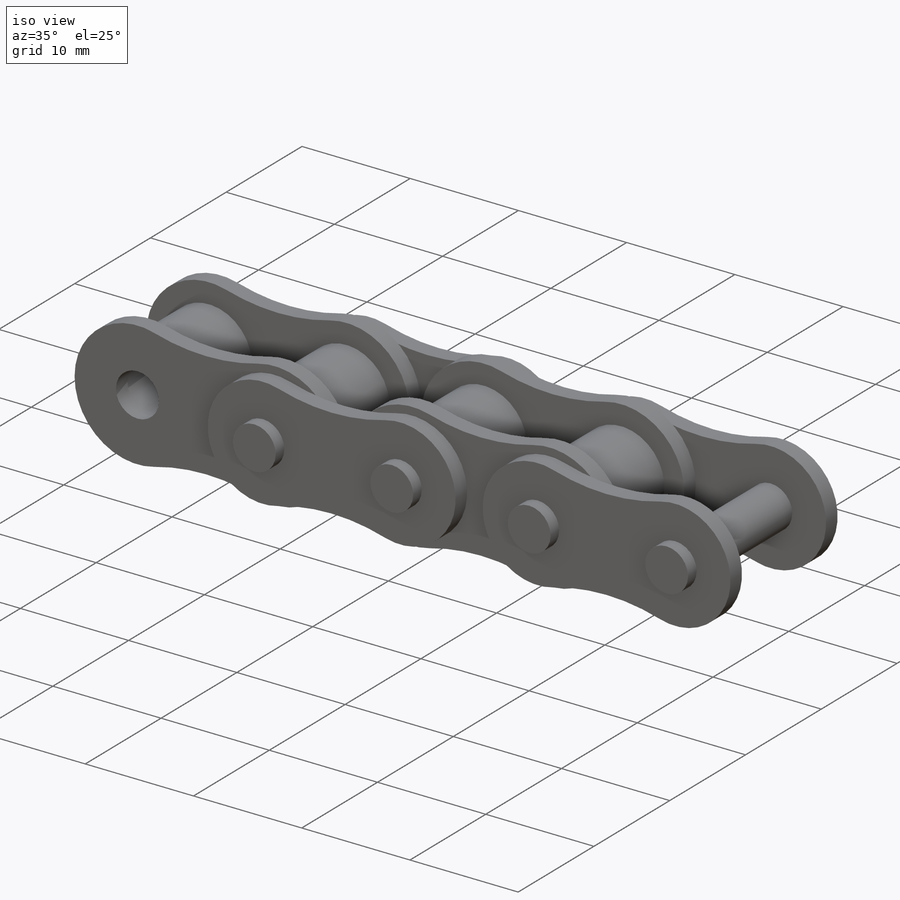
[diagram: iso view]
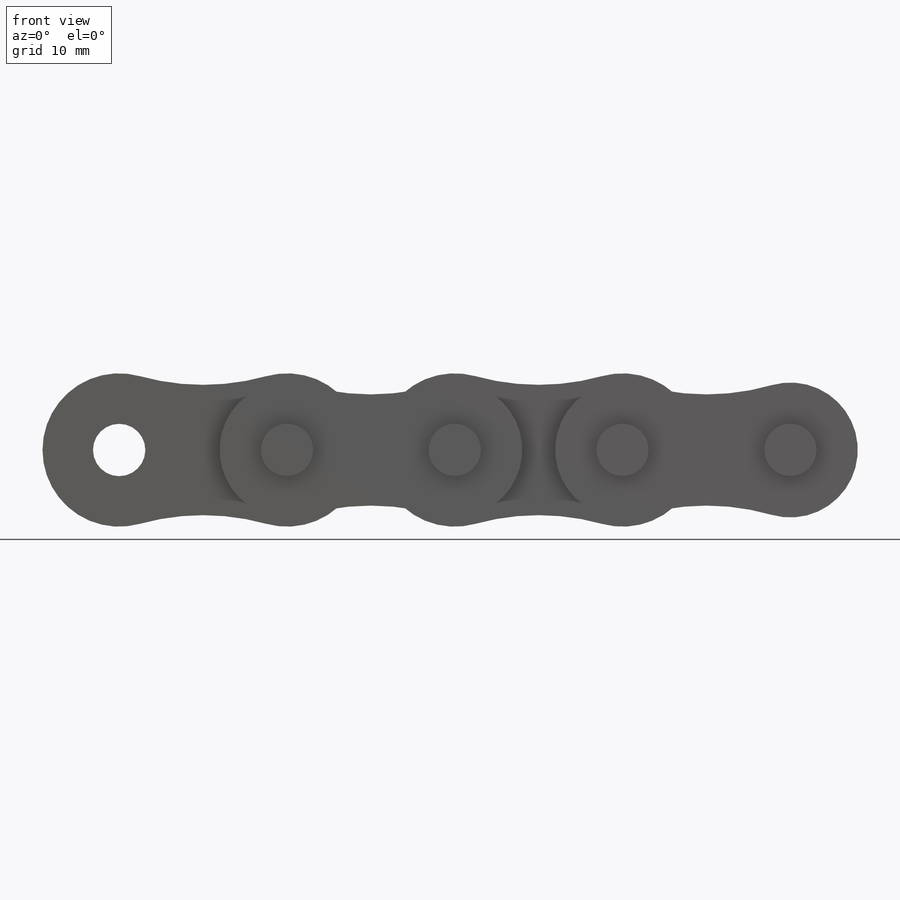
[diagram: front view]
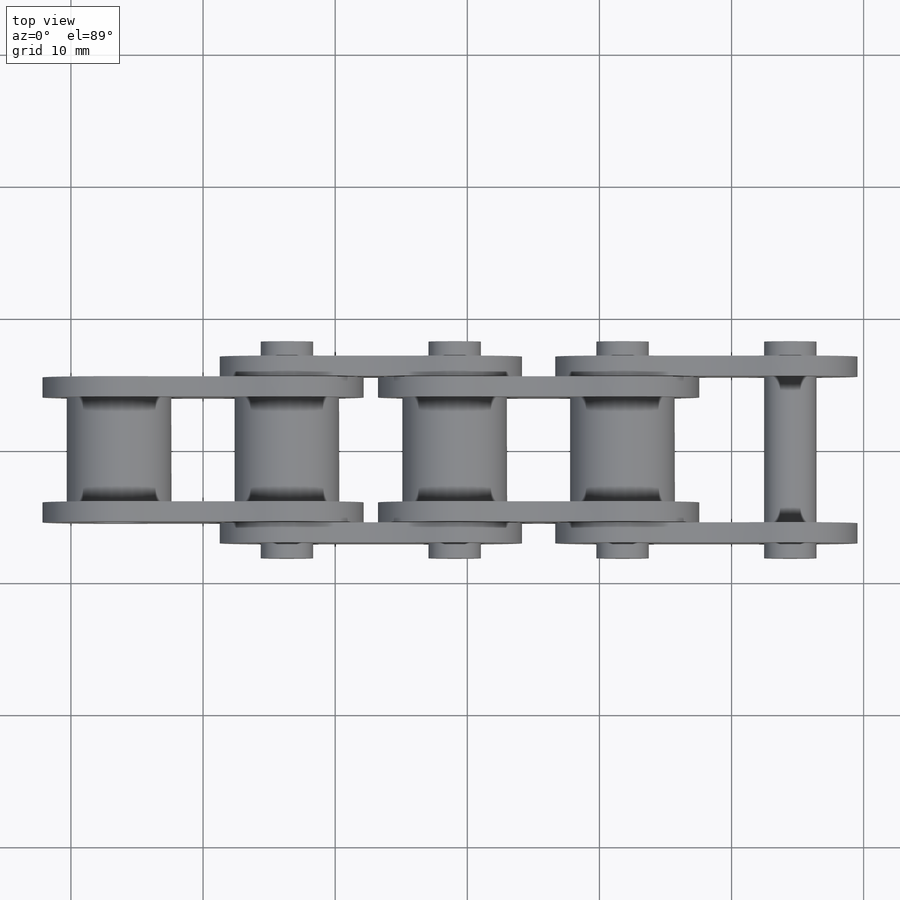
[diagram: top view]
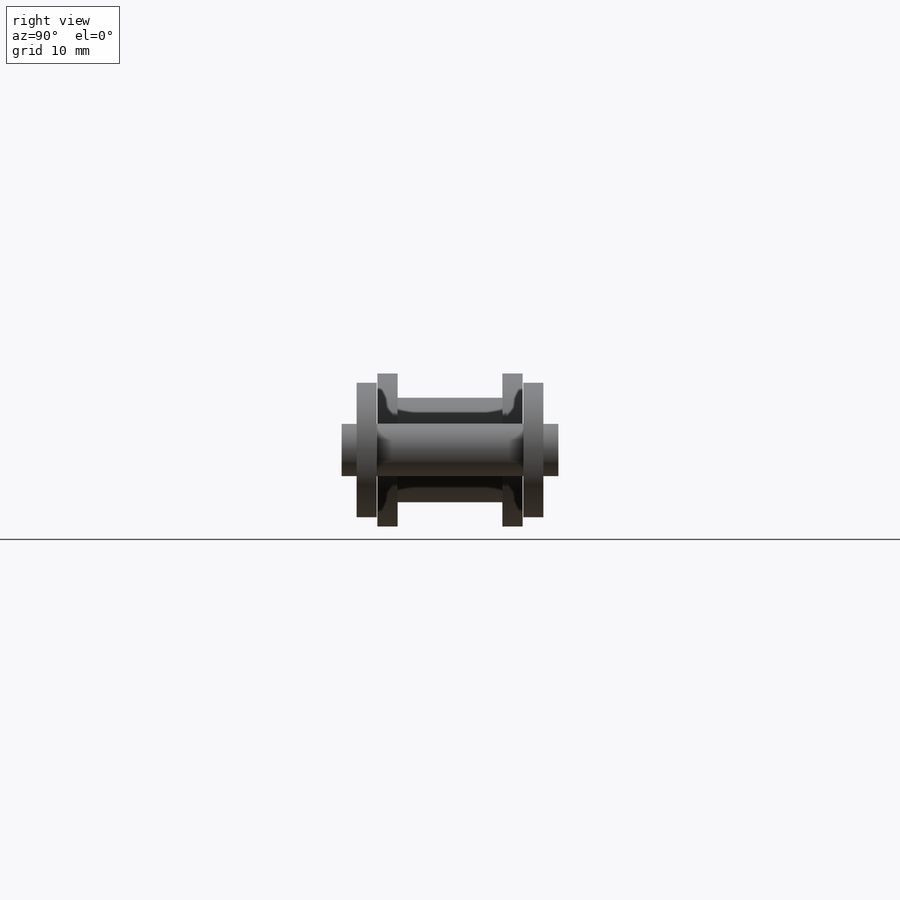
[diagram: right view]
SOLIDWORKS PART (.sldprt)
format: sldprt  version: not decoded by parser v0  size: 460,800 bytes
history: native  units: mm
features: sketch x7, extrude x4, plane x2, pattern_linear x2, material x1, mirror x1, delete_body x1, boolean_combine x1 (+15 scaffold rows collapsed)
feature tree (34):
  scaffold x15  (default folders/planes/origin — collapsed)
  material  "Material <not specified>"
  sketch  "Sketch1"  dims[Roller Dia=7.9248mm Pin Dia=3.9624mm Pitch=12.7mm H=11.6078mm D2=~9.86663mm]
  sketch  "Sketch2"  dims[W=7.9375mm T=1.524mm D1=1.524mm D2=1.524mm D3=0.0508mm]
  plane  "Plane1"
  plane  "Plane2"
  sketch  "Sketch4"  dims[D1=4.0132mm D2=4.0132mm]
  extrude  "Boss-Extrude1"  Depth=7.9375mm
  sketch  "Sketch5"
  extrude  "Boss-Extrude2"  [1 undecoded]
  pattern_linear  "LPattern1"  Count1=2 Count2=1 Spacing1=12.7mm Spacing2=0.254mm
  sketch  "Sketch7"  dims[D1=2.64mm D2=~10.214864mm]
  extrude  "Boss-Extrude3"  [1 undecoded]
  mirror  "Mirror1"
  sketch  "Sketch8"
  extrude  "Boss-Extrude4"  Depth=8.2042mm L2=8.2042mm L1=8.2042mm
  pattern_linear  "LPattern2"  Count1=2 Count2=1 Spacing1=25.4mm Spacing2=0.254mm
  delete_body  "Body-Delete1"
  boolean_combine  "Combine1"
  sketch  "Sketch9"
decode coverage: 8 of 16 modeling features carry decoded parameters
note: ~ marks probable driven/reference dimensions
note: 2 parameter values undecoded
note: suppression state not decoded; provenance and decode notes live in map.json
